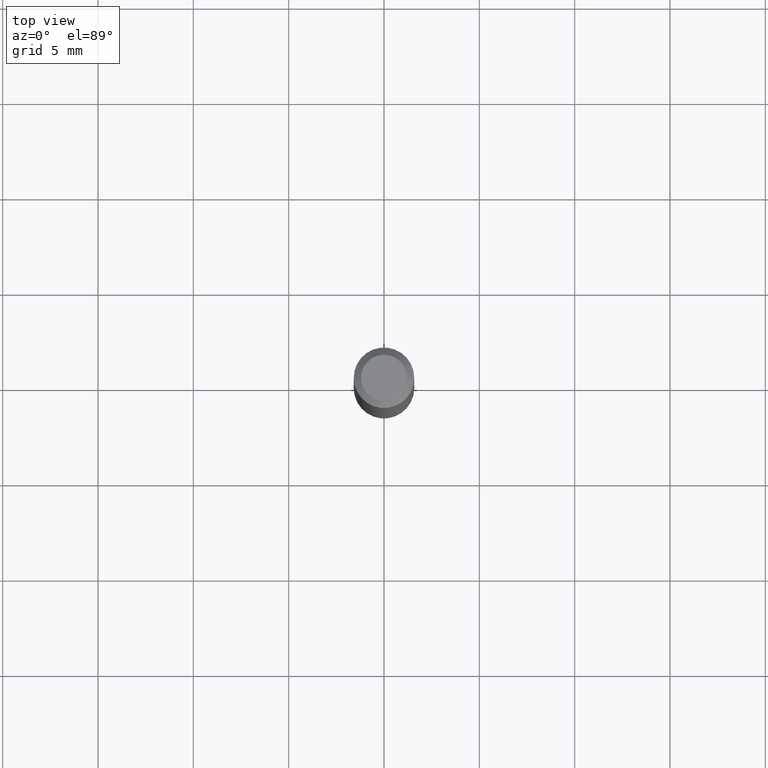
[diagram: clean part render]
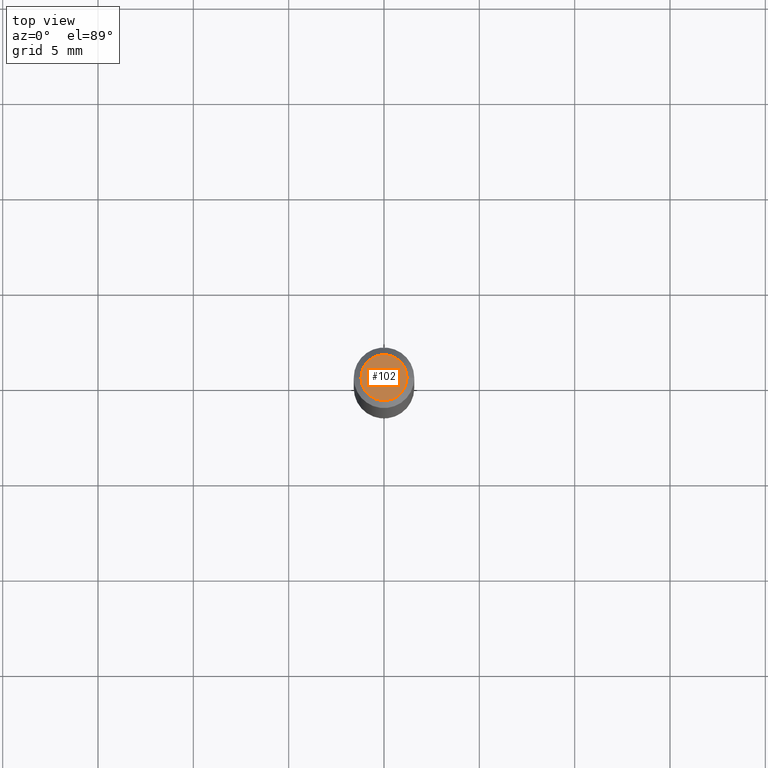
[diagram: same view with one face highlighted and labeled with its STEP entity id]
A machine part, top view. The second image highlights one B-rep face of the part: STEP entity #102.
In plain terms, the highlighted planar face has unit normal (0, -0, -1).
Its self-contained STEP definition (entity closure, byte-faithful):
#2 = DIRECTION ( 'NONE',  ( 1.000000000000000000, -6.982962677686267499E-15, 5.108144071313017768E-29 ) ) ;
#11 = FACE_OUTER_BOUND ( 'NONE', #167, .T. ) ;
#14 = ORIENTED_EDGE ( 'NONE', *, *, #81, .T. ) ;
#26 = CARTESIAN_POINT ( 'NONE',  ( 0.04749999999999999362, -4.035134999187603275E-16, -1.404502872476248897E-15 ) ) ;
#41 = CIRCLE ( 'NONE', #370, 0.04749999999999999362 ) ;
#64 = CIRCLE ( 'NONE', #101, 0.04749999999999999362 ) ;
#81 = EDGE_CURVE ( 'NONE', #126, #404, #64, .T. ) ;
#89 = DIRECTION ( 'NONE',  ( 2.438088387897960049E-29, -3.491481338843145188E-15, -1.000000000000000000 ) ) ;
#99 = CARTESIAN_POINT ( 'NONE',  ( 3.434667962838094334E-44, -4.903795569602426839E-30, -1.404502872476251461E-15 ) ) ;
#100 = DIRECTION ( 'NONE',  ( -2.445468806185136597E-29, 3.491481338843145583E-15, 1.000000000000000000 ) ) ;
#101 = AXIS2_PLACEMENT_3D ( 'NONE', #99, #152, #186 ) ;
#102 = ADVANCED_FACE ( 'NONE', ( #11 ), #107, .F. ) ;
#107 = PLANE ( 'NONE',  #463 ) ;
#126 = VERTEX_POINT ( 'NONE', #26 ) ;
#152 = DIRECTION ( 'NONE',  ( -2.445468806185136597E-29, 3.491481338843145583E-15, 1.000000000000000000 ) ) ;
#167 = EDGE_LOOP ( 'NONE', ( #425, #14 ) ) ;
#186 = DIRECTION ( 'NONE',  ( 1.000000000000000000, -6.982962677686267499E-15, 5.108144071313017768E-29 ) ) ;
#220 = EDGE_CURVE ( 'NONE', #404, #126, #41, .T. ) ;
#224 = DIRECTION ( 'NONE',  ( -1.000000000000000000, 6.982962677686265922E-15, -4.876176775795935793E-29 ) ) ;
#317 = CARTESIAN_POINT ( 'NONE',  ( 3.434667962838094334E-44, -4.903795569602426839E-30, -1.404502872476251461E-15 ) ) ;
#341 = CARTESIAN_POINT ( 'NONE',  ( 3.316907271900976096E-16, 0.04749999999999999362, -8.680967998331751761E-16 ) ) ;
#370 = AXIS2_PLACEMENT_3D ( 'NONE', #317, #100, #2 ) ;
#404 = VERTEX_POINT ( 'NONE', #441 ) ;
#425 = ORIENTED_EDGE ( 'NONE', *, *, #220, .T. ) ;
#441 = CARTESIAN_POINT ( 'NONE',  ( -0.04749999999999999362, 3.578768372314186347E-16, -1.404502872476254025E-15 ) ) ;
#463 = AXIS2_PLACEMENT_3D ( 'NONE', #341, #89, #224 ) ;